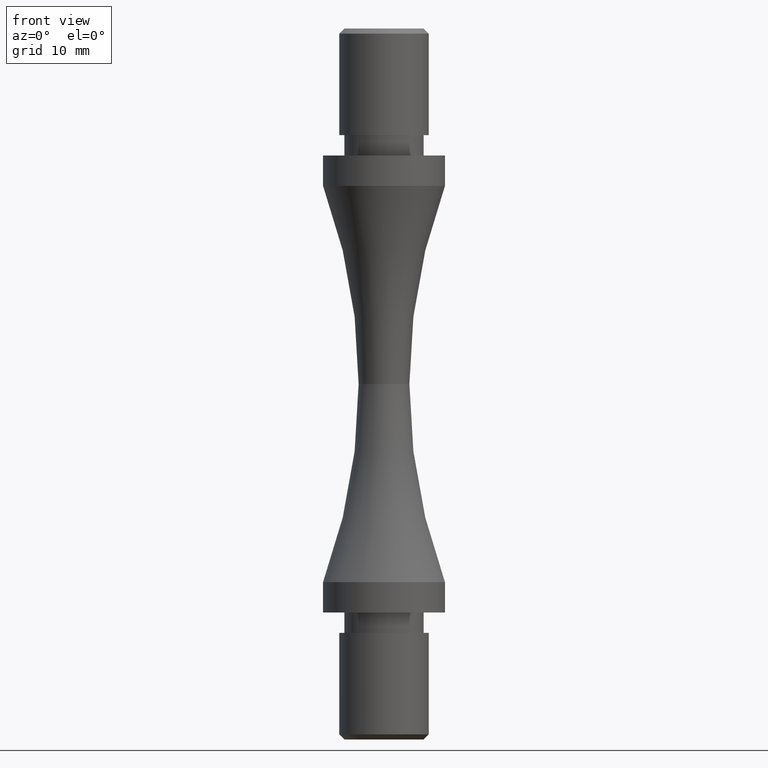
[diagram: clean part render]
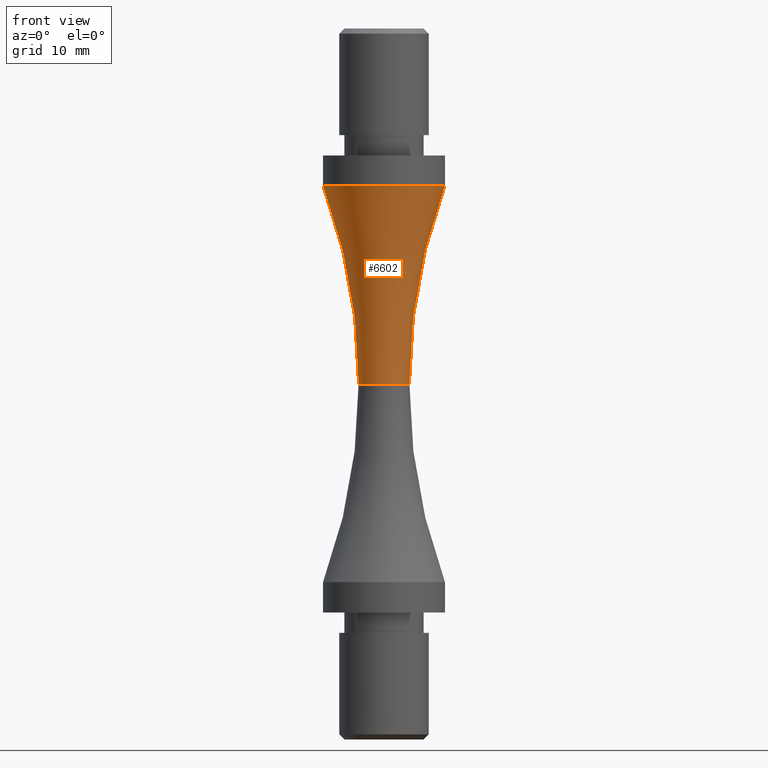
[diagram: same view with one face highlighted and labeled with its STEP entity id]
A machine part, front view. The second image highlights one B-rep face of the part: STEP entity #6602.
In plain terms, the highlighted toroidal blend (fillet) surface has major radius 58.6 mm and minor (blend) radius 56.1 mm.
Its self-contained STEP definition (entity closure, byte-faithful):
#1286 = DIRECTION ( 'NONE',  ( -1.000000000000000000, -1.224646799147353207E-16, 0.000000000000000000 ) ) ;
#1327 = CARTESIAN_POINT ( 'NONE',  ( 6.000000000000000888, -6.204105824418816700E-15, 19.50512753098525209 ) ) ;
#1403 = CARTESIAN_POINT ( 'NONE',  ( -2.500000000000009326, -6.938893903907228378E-15, 6.870268543216651909E-15 ) ) ;
#1505 = CARTESIAN_POINT ( 'NONE',  ( 0.000000000000000000, -5.635030204184775702E-15, 19.50512753098525209 ) ) ;
#1676 = ORIENTED_EDGE ( 'NONE', *, *, #11293, .T. ) ;
#2115 = ORIENTED_EDGE ( 'NONE', *, *, #13989, .T. ) ;
#2735 = DIRECTION ( 'NONE',  ( -0.000000000000000000, -0.000000000000000000, -1.000000000000000000 ) ) ;
#2853 = AXIS2_PLACEMENT_3D ( 'NONE', #1505, #2735, #6423 ) ;
#3158 = CIRCLE ( 'NONE', #5400, 2.500000000000009326 ) ;
#3191 = DIRECTION ( 'NONE',  ( -1.000000000000000000, 0.000000000000000000, 0.000000000000000000 ) ) ;
#3426 = VERTEX_POINT ( 'NONE', #1327 ) ;
#4397 = AXIS2_PLACEMENT_3D ( 'NONE', #8097, #14067, #3191 ) ;
#4492 = AXIS2_PLACEMENT_3D ( 'NONE', #14437, #8568, #1286 ) ;
#5400 = AXIS2_PLACEMENT_3D ( 'NONE', #14199, #15383, #8121 ) ;
#5458 = VERTEX_POINT ( 'NONE', #15088 ) ;
#5585 = CIRCLE ( 'NONE', #4492, 56.10000000000000142 ) ;
#6001 = CIRCLE ( 'NONE', #2853, 5.999999999999996447 ) ;
#6029 = ORIENTED_EDGE ( 'NONE', *, *, #12645, .F. ) ;
#6423 = DIRECTION ( 'NONE',  ( -1.000000000000000000, 0.000000000000000000, 0.000000000000000000 ) ) ;
#6495 = FACE_OUTER_BOUND ( 'NONE', #12433, .T. ) ;
#6602 = ADVANCED_FACE ( 'NONE', ( #6495 ), #11291, .F. ) ;
#6694 = CIRCLE ( 'NONE', #11217, 56.10000000000000142 ) ;
#7290 = VERTEX_POINT ( 'NONE', #13380 ) ;
#8097 = CARTESIAN_POINT ( 'NONE',  ( 0.000000000000000000, -6.938893903907228378E-15, 0.000000000000000000 ) ) ;
#8121 = DIRECTION ( 'NONE',  ( -1.000000000000000000, 0.000000000000000000, 0.000000000000000000 ) ) ;
#8194 = CARTESIAN_POINT ( 'NONE',  ( -58.60000000000001563, -6.938893903907228378E-15, 0.000000000000000000 ) ) ;
#8568 = DIRECTION ( 'NONE',  ( -1.224646799147353207E-16, 1.000000000000000000, 0.000000000000000000 ) ) ;
#11217 = AXIS2_PLACEMENT_3D ( 'NONE', #8194, #14322, #11922 ) ;
#11223 = VERTEX_POINT ( 'NONE', #1403 ) ;
#11291 = TOROIDAL_SURFACE ( 'NONE', #4397, 58.60000000000001563, 56.10000000000000142 ) ;
#11293 = EDGE_CURVE ( 'NONE', #3426, #7290, #6001, .T. ) ;
#11922 = DIRECTION ( 'NONE',  ( 0.000000000000000000, 0.000000000000000000, -1.000000000000000000 ) ) ;
#12433 = EDGE_LOOP ( 'NONE', ( #6029, #2115, #1676, #13204 ) ) ;
#12645 = EDGE_CURVE ( 'NONE', #5458, #11223, #3158, .T. ) ;
#13204 = ORIENTED_EDGE ( 'NONE', *, *, #15692, .F. ) ;
#13380 = CARTESIAN_POINT ( 'NONE',  ( -6.000000000000000888, -6.938893903907228378E-15, 19.50512753098525209 ) ) ;
#13989 = EDGE_CURVE ( 'NONE', #5458, #3426, #5585, .T. ) ;
#14067 = DIRECTION ( 'NONE',  ( -0.000000000000000000, -0.000000000000000000, -1.000000000000000000 ) ) ;
#14199 = CARTESIAN_POINT ( 'NONE',  ( 0.000000000000000000, -6.938893903907228378E-15, 6.870268543216651909E-15 ) ) ;
#14322 = DIRECTION ( 'NONE',  ( 0.000000000000000000, -1.000000000000000000, 0.000000000000000000 ) ) ;
#14437 = CARTESIAN_POINT ( 'NONE',  ( 58.60000000000001563, 2.375363390962633738E-16, 0.000000000000000000 ) ) ;
#15088 = CARTESIAN_POINT ( 'NONE',  ( 2.500000000000009326, -6.632732204120388141E-15, 6.870268543216651909E-15 ) ) ;
#15383 = DIRECTION ( 'NONE',  ( -0.000000000000000000, -0.000000000000000000, -1.000000000000000000 ) ) ;
#15692 = EDGE_CURVE ( 'NONE', #11223, #7290, #6694, .T. ) ;